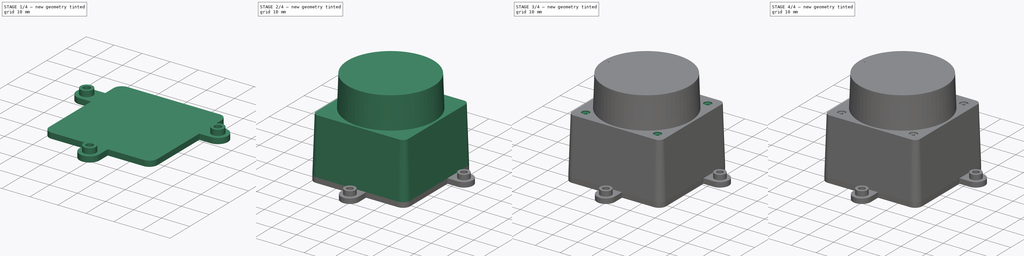
[diagram: build sequence overview — one tinted view per stage of 4, left to right]
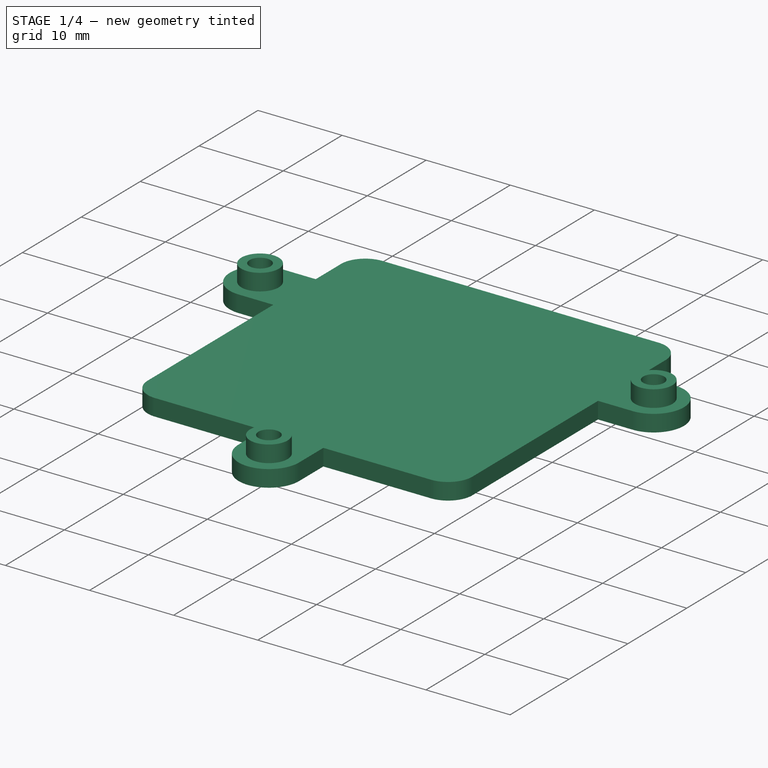
[diagram: stage 1 of 4 — iso view after this stage's code; geometry added in this stage tinted green]
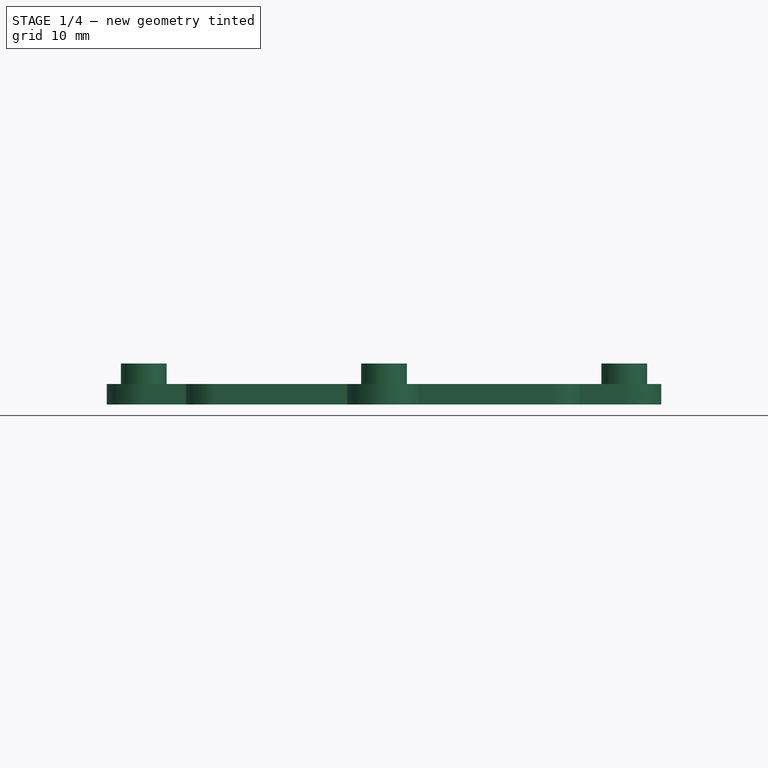
[diagram: stage 1 of 4 — front view after this stage's code; geometry added in this stage tinted green]
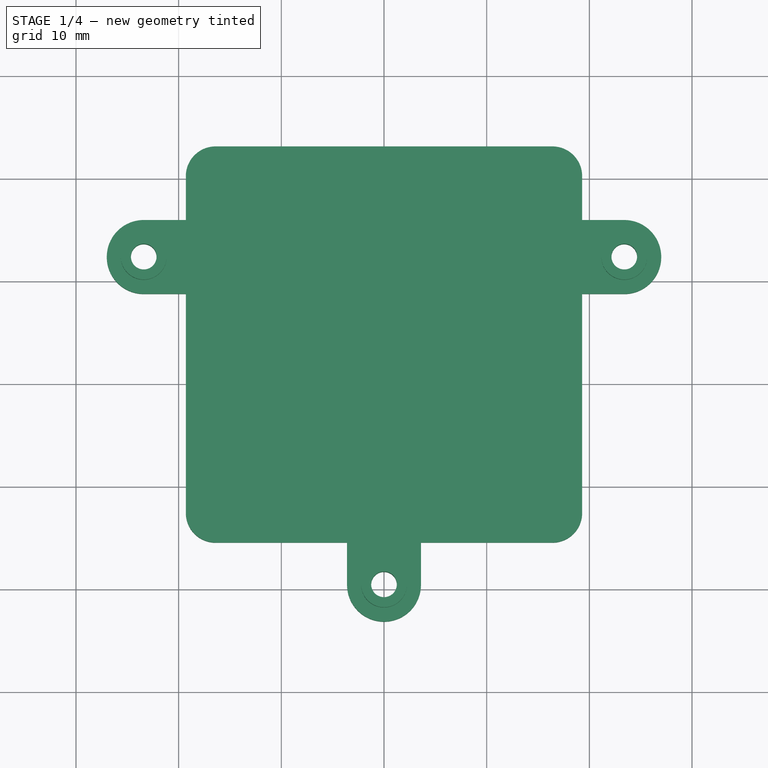
[diagram: stage 1 of 4 — top view after this stage's code; geometry added in this stage tinted green]
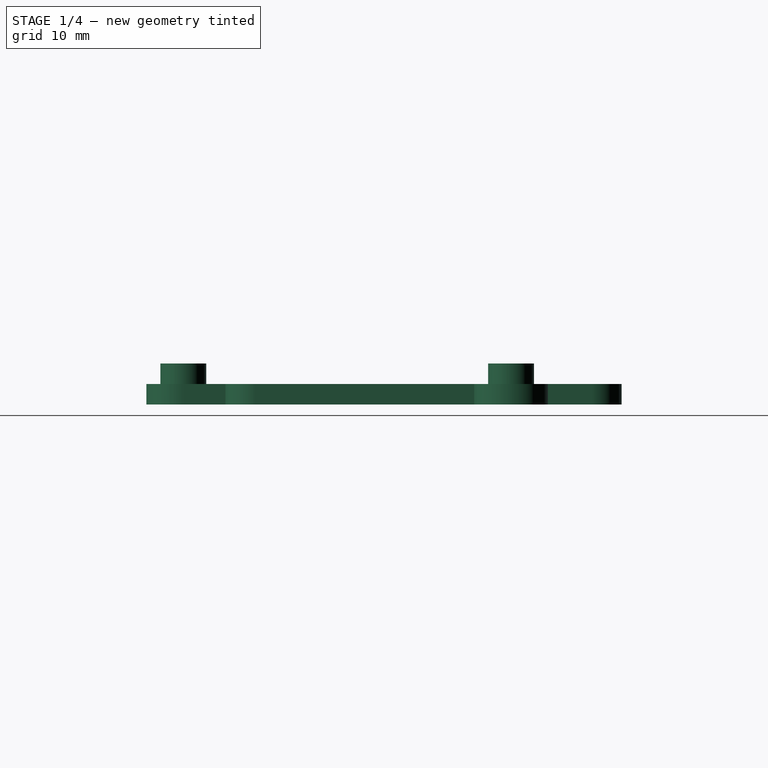
[diagram: stage 1 of 4 — right view after this stage's code; geometry added in this stage tinted green]
FCSTD DOCUMENT  (FreeCAD 1.0R39109 (Git))
Label: ld19_lidar
License: All rights reserved
LicenseURL: http://en.wikipedia.org/wiki/All_rights_reserved
objects: Sketcher::SketchObject×11, PartDesign::Pad×5, PartDesign::Pocket×4, PartDesign::Line×1, PartDesign::PolarPattern×1, PartDesign::Body×1
note: 53 computed .brp shape members not serialized (recipe doc carries the construction recipe); baked Part::Feature solids carry a one-line shape summary decoded from their .brp

FEATURE [Sketcher::SketchObject] Sketch
  ArcFitTolerance = 1e-06
  AttachmentSupport = -> [XY_Plane]
  FullyConstrained = true
  MakeInternals = false
  MapMode = 5
  sketch-geometry (28):
    g0: LineSegment [constr] StartX=-27 StartY=23.145 StartZ=0 EndX=-27 EndY=-23.145 EndZ=0
    g1: LineSegment [constr] StartX=-27 StartY=-23.145 StartZ=0 EndX=27 EndY=-23.145 EndZ=0
    g2: LineSegment [constr] StartX=27 StartY=-23.145 StartZ=0 EndX=27 EndY=23.145 EndZ=0
    g3: LineSegment [constr] StartX=27 StartY=23.145 StartZ=0 EndX=-27 EndY=23.145 EndZ=0
    g4: GeomPoint [constr] X=0 Y=0 Z=0
    g5: LineSegment StartX=-16.4 StartY=23.145 StartZ=0 EndX=16.4 EndY=23.145 EndZ=0
    g6: ArcOfCircle CenterX=16.4 CenterY=20.245 CenterZ=0 NormalX=0 NormalY=0 NormalZ=1 AngleXU=0 Radius=2.9 StartAngle=-1.2692e-12 EndAngle=1.5708
    g7: LineSegment StartX=19.3 StartY=20.245 StartZ=0 EndX=19.3 EndY=15.975 EndZ=0
    g8: LineSegment StartX=19.3 StartY=15.975 StartZ=0 EndX=23.4 EndY=15.975 EndZ=0
    g9: ArcOfCircle CenterX=23.4 CenterY=12.375 CenterZ=0 NormalX=0 NormalY=0 NormalZ=1 AngleXU=0 Radius=3.6 StartAngle=4.71239 EndAngle=7.85398
    g10: LineSegment StartX=23.4 StartY=8.775 StartZ=0 EndX=19.3 EndY=8.775 EndZ=0
    g11: LineSegment StartX=19.3 StartY=8.775 StartZ=0 EndX=19.3 EndY=-12.545 EndZ=0
    g12: ArcOfCircle CenterX=16.4 CenterY=-12.545 CenterZ=0 NormalX=0 NormalY=0 NormalZ=1 AngleXU=0 Radius=2.9 StartAngle=4.71239 EndAngle=6.28319
    g13: LineSegment StartX=16.4 StartY=-15.445 StartZ=0 EndX=3.6 EndY=-15.445 EndZ=0
    g14: LineSegment StartX=3.6 StartY=-15.445 StartZ=0 EndX=3.6 EndY=-19.545 EndZ=0
    g15: ArcOfCircle CenterX=0 CenterY=-19.545 CenterZ=0 NormalX=0 NormalY=0 NormalZ=1 AngleXU=0 Radius=3.6 StartAngle=3.14159 EndAngle=6.28319
    g16: LineSegment StartX=-3.6 StartY=-19.545 StartZ=0 EndX=-3.6 EndY=-15.445 EndZ=0
    g17: LineSegment StartX=-3.6 StartY=-15.445 StartZ=0 EndX=-16.4 EndY=-15.445 EndZ=0
    g18: ArcOfCircle CenterX=-16.4 CenterY=-12.545 CenterZ=0 NormalX=0 NormalY=0 NormalZ=1 AngleXU=0 Radius=2.9 StartAngle=3.14159 EndAngle=4.71239
    g19: LineSegment StartX=-19.3 StartY=-12.545 StartZ=0 EndX=-19.3 EndY=8.775 EndZ=0
    g20: LineSegment StartX=-19.3 StartY=8.775 StartZ=0 EndX=-23.4 EndY=8.775 EndZ=0
    g21: ArcOfCircle CenterX=-23.4 CenterY=12.375 CenterZ=0 NormalX=0 NormalY=0 NormalZ=1 AngleXU=0 Radius=3.6 StartAngle=1.5708 EndAngle=4.71239
    g22: LineSegment StartX=-23.4 StartY=15.975 StartZ=0 EndX=-19.3 EndY=15.975 EndZ=0
    g23: LineSegment StartX=-19.3 StartY=15.975 StartZ=0 EndX=-19.3 EndY=20.245 EndZ=0
    g24: ArcOfCircle CenterX=-16.4 CenterY=20.245 CenterZ=0 NormalX=0 NormalY=0 NormalZ=1 AngleXU=0 Radius=2.9 StartAngle=1.5708 EndAngle=3.14159
    g25: Circle CenterX=-23.4 CenterY=12.375 CenterZ=0 NormalX=0 NormalY=0 NormalZ=1 AngleXU=0 Radius=1.25
    g26: Circle CenterX=23.4 CenterY=12.375 CenterZ=0 NormalX=0 NormalY=0 NormalZ=1 AngleXU=0 Radius=1.25
    g27: Circle CenterX=0 CenterY=-19.545 CenterZ=0 NormalX=0 NormalY=0 NormalZ=1 AngleXU=0 Radius=1.25
  constraints (73):
    c: Coincident(g0,g1)
    c: Coincident(g1,g2)
    c: Coincident(g2,g3)
    c: Coincident(g3,g0)
    c: Vertical(g0)
    c: Vertical(g2)
    c: Horizontal(g1)
    c: Horizontal(g3)
    c: Symmetric(g2,g0,g4)
    c: Coincident(g4,g-1)
    c: DistanceX(g3,g3) = 54
    c: DistanceY(g2,g2) = 46.29
    c: PointOnObject(g5,g3)
    c: Tangent(g5,g6) = 1.5708
    c: Tangent(g6,g7) = 1.5708
    c: Coincident(g7,g8)
    c: Tangent(g8,g9) = 1.5708
    c: Coincident(g9,g10)
    c: Coincident(g10,g11)
    c: Vertical(g11)
    c: Tangent(g11,g12) = 1.5708
    c: Horizontal(g13)
    c: Coincident(g13,g14)
    c: Tangent(g14,g15) = 1.5708
    c: Coincident(g15,g16)
    c: Coincident(g16,g17)
    c: Horizontal(g17)
    c: Tangent(g17,g18) = 1.5708
    c: Vertical(g19)
    c: Coincident(g19,g20)
    c: Horizontal(g20)
    c: Tangent(g20,g21) = 1.5708
    c: Coincident(g21,g22)
    c: Coincident(g22,g23)
    c: Vertical(g23)
    c: Horizontal(g22,g7)
    c: Perpendicular(g22,g23)
    c: Perpendicular(g7,g8)
    c: Vertical(g7)
    c: Horizontal(g10)
    c: Vertical(g19,g22)
    c: Vertical(g21,g21)
    c: Tangent(g0,g21)
    c: Tangent(g9,g2)
    c: Vertical(g9,g9)
    c: Symmetric(g5,g5,g-2)
    c: Horizontal(g6,g23)
    c: Coincident(g24,g23)
    c: Tangent(g24,g5) = 1.5708
    c: Equal(g24,g6)
    c: Horizontal(g10,g19)
    c: Equal(g10,g20)
    c: Vertical(g16)
    c: Vertical(g14)
    c: Tangent(g12,g13) = 1.5708
    c: Tangent(g18,g19) = 1.5708
    c: Tangent(g15,g1)
    c: Horizontal(g14,g15)
    c: Equal(g15,g9)
    c: Symmetric(g13,g16,g-2)
    c: DistanceY(g15,g21) = 31.92
    c: DistanceX(g21,g9) = 46.8
    c: Equal(g18,g12)
    c: Equal(g12,g24)
    c: Radius(g12) = 2.9
    c: Equal(g16,g20)
    c: DistanceY(g12,g5) = 38.59
    c: Coincident(g25,g21)
    c: Coincident(g26,g9)
    c: Coincident(g27,g15)
    c: Equal(g27,g26)
    c: Equal(g26,g25)
    c: Radius(g25) = 1.25
FEATURE [PartDesign::Pad] Pad  label="PlatformPad"
  Direction = (0,0,1)
  Length = 2
  Length2 = 10
  Profile = -> Sketch
  ReferenceAxis = -> Sketch [N_Axis]
  Refine = true
  Suppressed = false
  Type = 0
FEATURE [Sketcher::SketchObject] Sketch001
  ArcFitTolerance = 1e-06
  AttachmentSupport = -> [Pad]
  ExternalGeometry = -> [Pad]
  FullyConstrained = true
  MakeInternals = false
  MapMode = 5
  Placement = pos=(0,0,2) rot=(0,0,1;0rad)
  sketch-geometry (6):
    g0: Circle CenterX=-23.4 CenterY=12.375 CenterZ=0 NormalX=0 NormalY=0 NormalZ=1 AngleXU=0 Radius=2.23
    g1: Circle CenterX=-23.4 CenterY=12.375 CenterZ=0 NormalX=0 NormalY=0 NormalZ=1 AngleXU=0 Radius=1.25
    g2: Circle CenterX=23.4 CenterY=12.375 CenterZ=0 NormalX=0 NormalY=0 NormalZ=1 AngleXU=0 Radius=2.23
    g3: Circle CenterX=23.4 CenterY=12.375 CenterZ=0 NormalX=0 NormalY=0 NormalZ=1 AngleXU=0 Radius=1.25
    g4: Circle CenterX=0 CenterY=-19.545 CenterZ=0 NormalX=0 NormalY=0 NormalZ=1 AngleXU=0 Radius=2.23
    g5: Circle CenterX=0 CenterY=-19.545 CenterZ=0 NormalX=0 NormalY=0 NormalZ=1 AngleXU=0 Radius=1.25
  constraints (12):
    c: Coincident(g0,g-3)
    c: Coincident(g1,g0)
    c: Coincident(g2,g-5)
    c: Coincident(g3,g2)
    c: Coincident(g4,g-4)
    c: Coincident(g5,g4)
    c: Equal(g5,g-4)
    c: Equal(g4,g2)
    c: Equal(g2,g0)
    c: Equal(g1,g-3)
    c: Equal(g3,g-5)
    c: Radius(g2) = 2.23
FEATURE [PartDesign::Pad] Pad001  label="ScrewExtPad"
  BaseFeature = -> Pad
  Direction = (0,0,1)
  Length = 2
  Length2 = 10
  Profile = -> Sketch001
  ReferenceAxis = -> Sketch001 [N_Axis]
  Refine = true
  Suppressed = false
  Type = 0
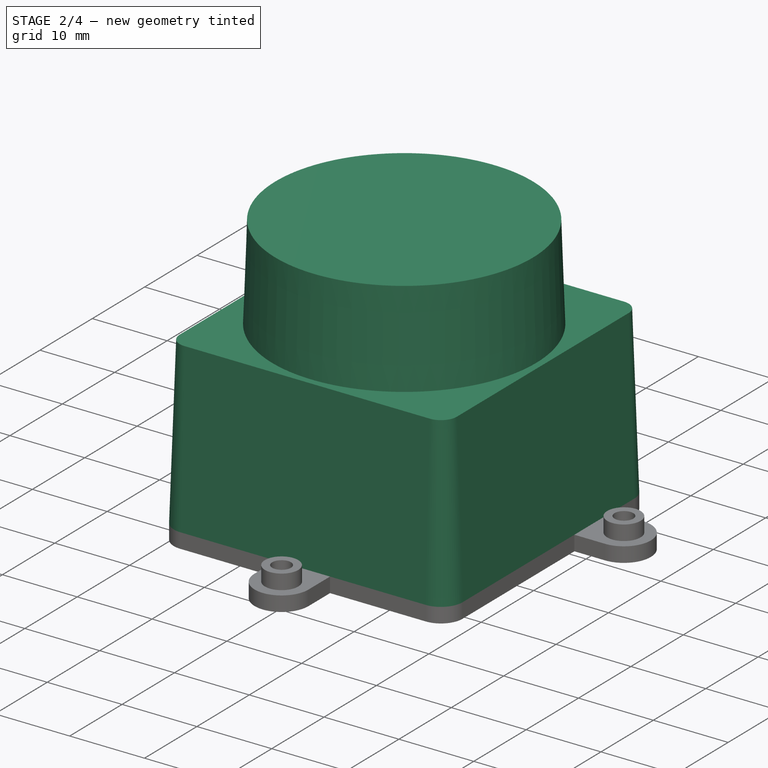
[diagram: stage 2 of 4 — iso view after this stage's code; geometry added in this stage tinted green]
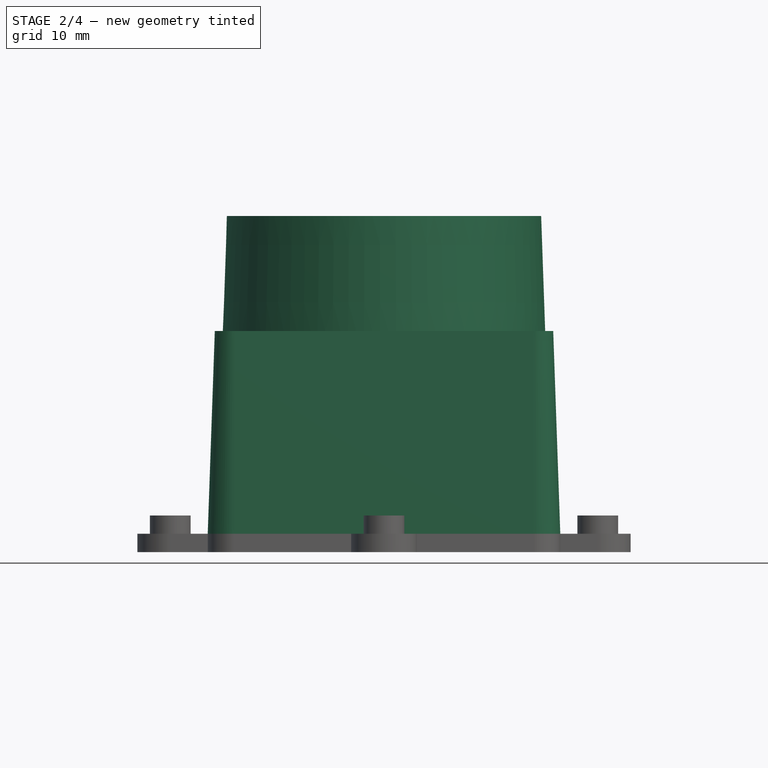
[diagram: stage 2 of 4 — front view after this stage's code; geometry added in this stage tinted green]
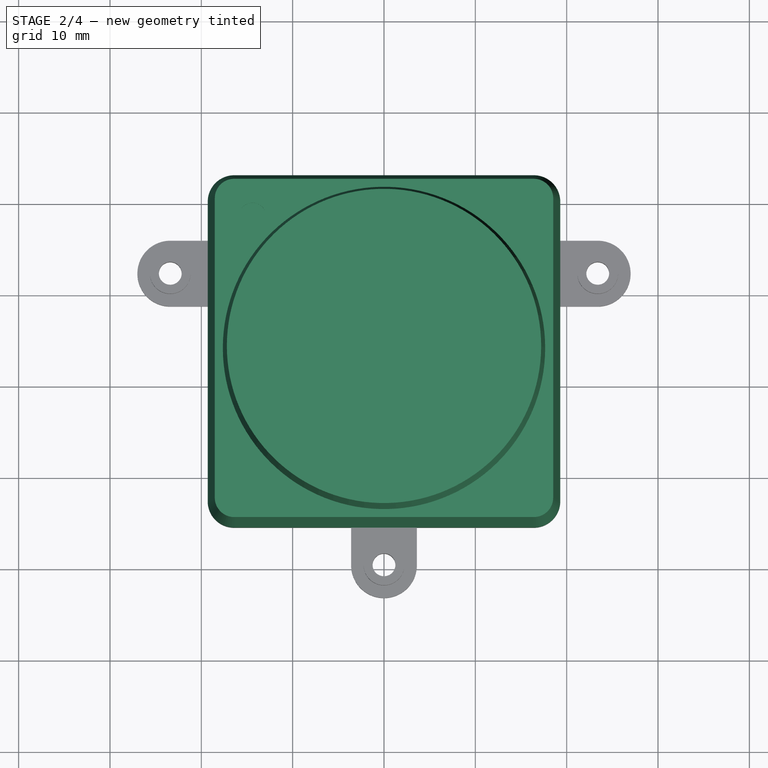
[diagram: stage 2 of 4 — top view after this stage's code; geometry added in this stage tinted green]
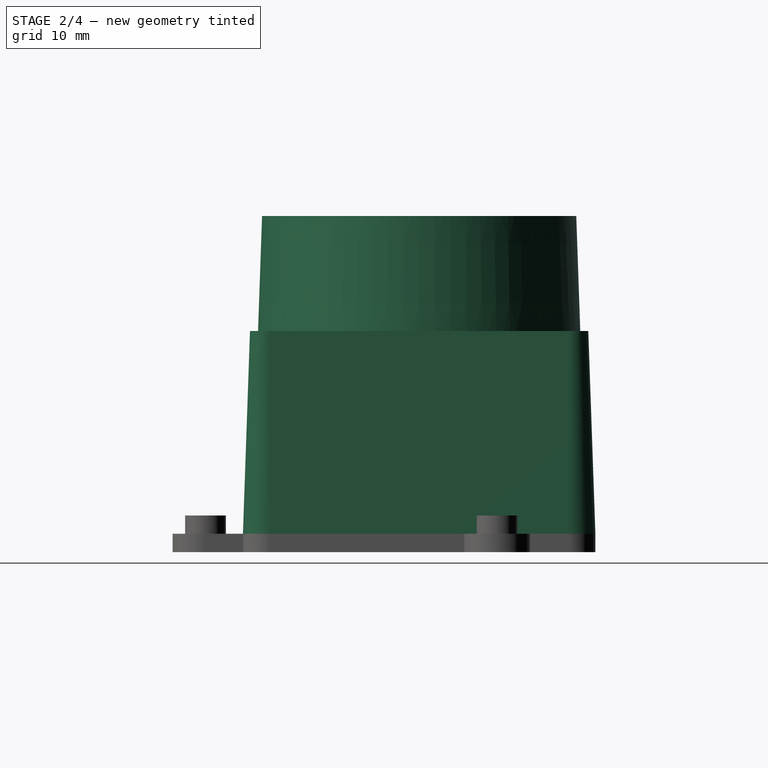
[diagram: stage 2 of 4 — right view after this stage's code; geometry added in this stage tinted green]
FEATURE [Sketcher::SketchObject] Sketch002
  ArcFitTolerance = 1e-06
  AttachmentSupport = -> [Pad001]
  ExternalGeometry = -> [Pad001]
  FullyConstrained = true
  MakeInternals = false
  MapMode = 5
  Placement = pos=(0,0,2) rot=(0,0,1;0rad)
  sketch-geometry (10):
    g0: LineSegment StartX=-19.3 StartY=20.245 StartZ=0 EndX=-19.3 EndY=-12.545 EndZ=0
    g1: LineSegment StartX=-16.4 StartY=-15.445 StartZ=0 EndX=16.4 EndY=-15.445 EndZ=0
    g2: LineSegment StartX=19.3 StartY=-12.545 StartZ=0 EndX=19.3 EndY=20.245 EndZ=0
    g3: LineSegment StartX=16.4 StartY=23.145 StartZ=0 EndX=-16.4 EndY=23.145 EndZ=0
    g4: ArcOfCircle CenterX=-16.4 CenterY=20.245 CenterZ=0 NormalX=0 NormalY=0 NormalZ=1 AngleXU=0 Radius=2.9 StartAngle=1.5708 EndAngle=3.14159
    g5: ArcOfCircle CenterX=-16.4 CenterY=-12.545 CenterZ=0 NormalX=0 NormalY=0 NormalZ=1 AngleXU=0 Radius=2.9 StartAngle=3.14159 EndAngle=4.71239
    g6: ArcOfCircle CenterX=16.4 CenterY=-12.545 CenterZ=0 NormalX=0 NormalY=0 NormalZ=1 AngleXU=0 Radius=2.9 StartAngle=4.71239 EndAngle=6.28319
    g7: ArcOfCircle CenterX=16.4 CenterY=20.245 CenterZ=0 NormalX=0 NormalY=0 NormalZ=1 AngleXU=0 Radius=2.9 StartAngle=5e-16 EndAngle=1.5708
    g8: GeomPoint [constr] X=-19.3 Y=23.145 Z=0
    g9: GeomPoint [constr] X=19.3 Y=-15.445 Z=0
  constraints (22):
    c: Tangent(g0,g4) = -1.5708
    c: Tangent(g0,g5) = -1.5708
    c: Tangent(g1,g5) = -1.5708
    c: Tangent(g1,g6) = -1.5708
    c: Tangent(g2,g6) = -1.5708
    c: Tangent(g2,g7) = -1.5708
    c: Tangent(g3,g7) = -1.5708
    c: Tangent(g3,g4) = -1.5708
    c: Vertical(g0)
    c: Vertical(g2)
    c: Horizontal(g1)
    c: Horizontal(g3)
    c: Equal(g4,g5)
    c: Equal(g5,g6)
    c: Equal(g6,g7)
    c: PointOnObject(g8,g0)
    c: PointOnObject(g8,g3)
    c: PointOnObject(g9,g1)
    c: PointOnObject(g9,g2)
    c: Equal(g6,g-7)
    c: Coincident(g6,g-7)
    c: Coincident(g4,g-8)
FEATURE [PartDesign::Pad] Pad002  label="BoxPad"
  BaseFeature = -> Pad001
  Direction = (0,0,1)
  Length = 22.2
  Length2 = 10
  Profile = -> Sketch002
  ReferenceAxis = -> Sketch002 [N_Axis]
  Refine = true
  Suppressed = false
  TaperAngle = -2
  Type = 0
FEATURE [Sketcher::SketchObject] Sketch003
  ArcFitTolerance = 1e-06
  AttachmentSupport = -> [Pad002]
  ExternalGeometry = -> [Pad002]
  FullyConstrained = true
  MakeInternals = false
  MapMode = 5
  Placement = pos=(0,0,24.2) rot=(0,0,1;0rad)
  sketch-geometry (3):
    g0: Circle CenterX=0 CenterY=3.85 CenterZ=0 NormalX=0 NormalY=0 NormalZ=1 AngleXU=0 Radius=17.645
    g1: GeomPoint X=18.5248 Y=3.85 Z=0
    g2: GeomPoint X=-2.593e-13 Y=22.3698 Z=0
  constraints (5):
    c: PointOnObject(g0,g-2)
    c: Symmetric(g-3,g-3,g1)
    c: Symmetric(g-4,g-4,g2)
    c: Horizontal(g1,g0)
    c: Radius(g0) = 17.645
FEATURE [PartDesign::Pad] Pad003  label="CylinderPad"
  BaseFeature = -> Pad002
  Direction = (0,0,1)
  Length = 12.6
  Length2 = 10
  Profile = -> Sketch003
  ReferenceAxis = -> Sketch003 [N_Axis]
  Refine = true
  Suppressed = false
  TaperAngle = -2
  Type = 0
FEATURE [Sketcher::SketchObject] Sketch004
  ArcFitTolerance = 1e-06
  AttachmentSupport = -> [Pad003]
  ExternalGeometry = -> [Pad003]
  FullyConstrained = true
  MakeInternals = false
  MapMode = 5
  Placement = pos=(0,0,24.2) rot=(0,0,1;0rad)
  sketch-geometry (3):
    g0: Circle CenterX=-14.3949 CenterY=18.2449 CenterZ=0 NormalX=0 NormalY=0 NormalZ=1 AngleXU=0 Radius=1.5
    g1: LineSegment [constr] StartX=-14.3949 StartY=18.2449 StartZ=0 EndX=0 EndY=3.85 EndZ=0
    g2: LineSegment [constr] StartX=0 StartY=3.85 StartZ=0 EndX=-17.205 EndY=3.85 EndZ=0
  constraints (8):
    c: Radius(g0) = 1.5
    c: Coincident(g1,g0)
    c: Coincident(g1,g-3)
    c: Coincident(g2,g1)
    c: PointOnObject(g2,g-3)
    c: Horizontal(g2)
    c: Angle(g1,g2) = 0.785398
    c: Distance(g1) = 20.3575
FEATURE [PartDesign::Pocket] Pocket  label="ScrewPocket"
  BaseFeature = -> Pad003
  Direction = (0,0,-1)
  Length = 0.5
  Length2 = 5
  Profile = -> Sketch004
  ReferenceAxis = -> Sketch004 [N_Axis]
  Refine = true
  Suppressed = false
  Type = 0
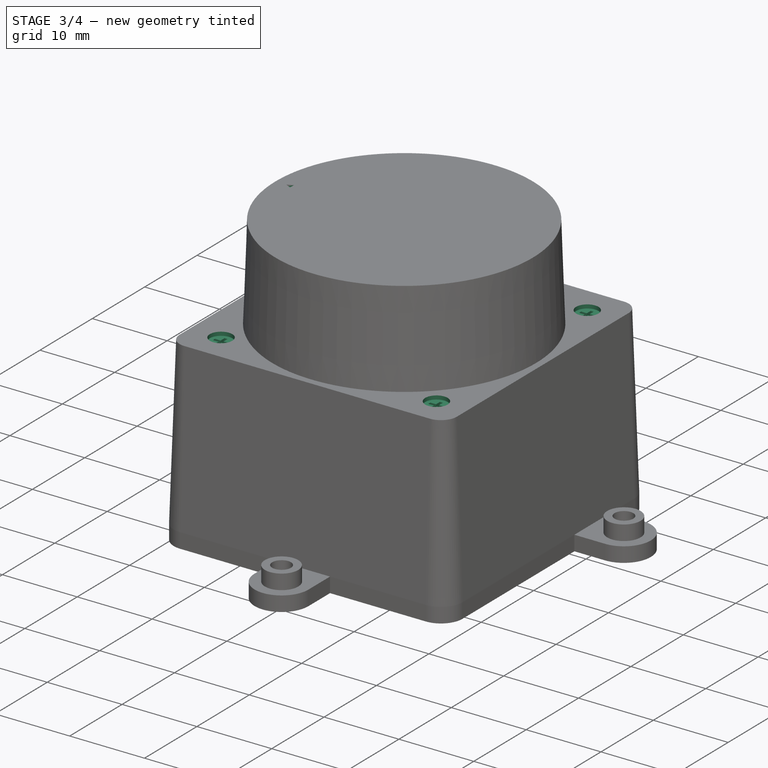
[diagram: stage 3 of 4 — iso view after this stage's code; geometry added in this stage tinted green]
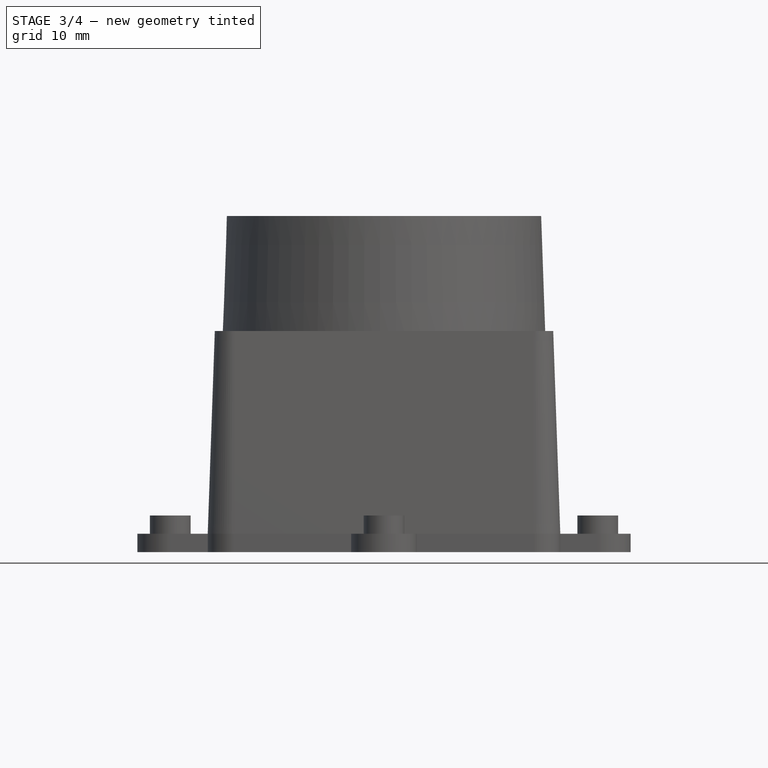
[diagram: stage 3 of 4 — front view after this stage's code; geometry added in this stage tinted green]
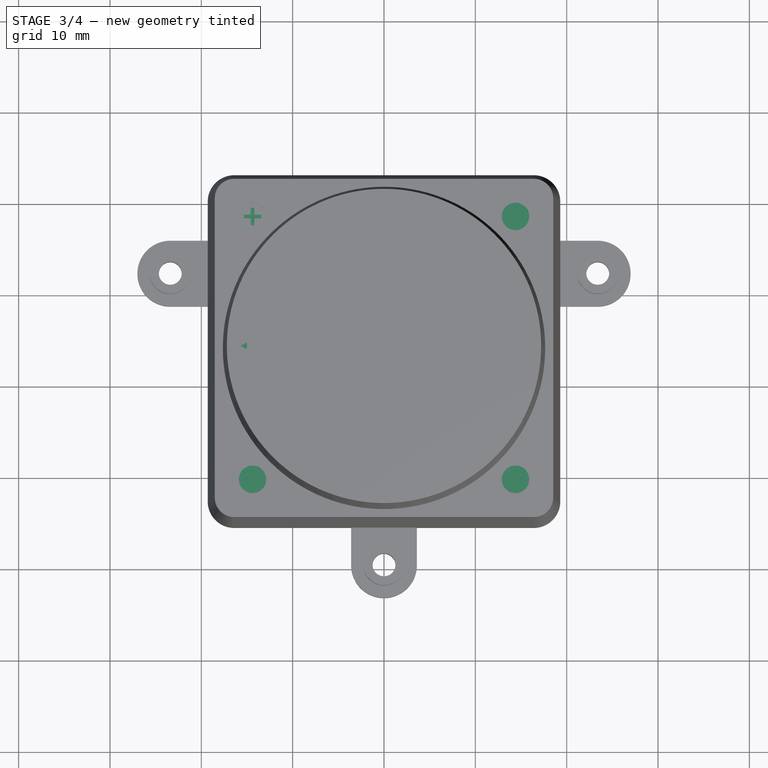
[diagram: stage 3 of 4 — top view after this stage's code; geometry added in this stage tinted green]
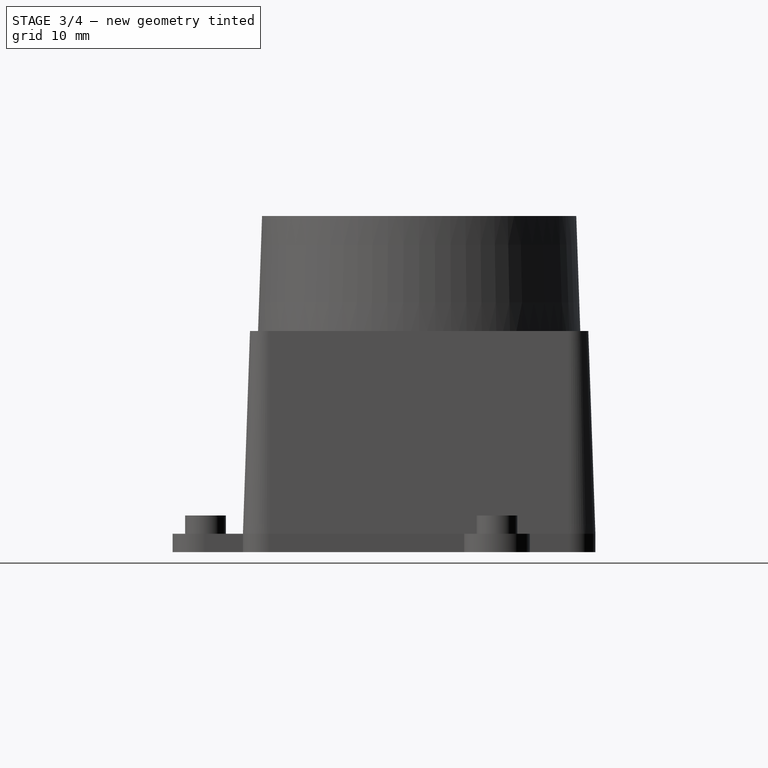
[diagram: stage 3 of 4 — right view after this stage's code; geometry added in this stage tinted green]
FEATURE [Sketcher::SketchObject] Sketch005
  ArcFitTolerance = 1e-06
  AttachmentSupport = -> [Pocket]
  ExternalGeometry = -> [Pocket]
  FullyConstrained = true
  MakeInternals = false
  MapMode = 5
  Placement = pos=(0,0,23.7) rot=(0,0,1;0rad)
  sketch-geometry (12):
    g0: LineSegment StartX=-14.5949 StartY=19.1949 StartZ=0 EndX=-14.1949 EndY=19.1949 EndZ=0
    g1: LineSegment StartX=-14.1949 StartY=19.1949 StartZ=0 EndX=-14.1949 EndY=18.4449 EndZ=0
    g2: LineSegment StartX=-14.1949 StartY=18.4449 StartZ=0 EndX=-13.4449 EndY=18.4449 EndZ=0
    g3: LineSegment StartX=-13.4449 StartY=18.4449 StartZ=0 EndX=-13.4449 EndY=18.0449 EndZ=0
    g4: LineSegment StartX=-13.4449 StartY=18.0449 StartZ=0 EndX=-14.1949 EndY=18.0449 EndZ=0
    g5: LineSegment StartX=-14.1949 StartY=18.0449 StartZ=0 EndX=-14.1949 EndY=17.2949 EndZ=0
    g6: LineSegment StartX=-14.1949 StartY=17.2949 StartZ=0 EndX=-14.5949 EndY=17.2949 EndZ=0
    g7: LineSegment StartX=-14.5949 StartY=17.2949 StartZ=0 EndX=-14.5949 EndY=18.0449 EndZ=0
    g8: LineSegment StartX=-14.5949 StartY=18.0449 StartZ=0 EndX=-15.3449 EndY=18.0449 EndZ=0
    g9: LineSegment StartX=-15.3449 StartY=18.0449 StartZ=0 EndX=-15.3449 EndY=18.4449 EndZ=0
    g10: LineSegment StartX=-15.3449 StartY=18.4449 StartZ=0 EndX=-14.5949 EndY=18.4449 EndZ=0
    g11: LineSegment StartX=-14.5949 StartY=18.4449 StartZ=0 EndX=-14.5949 EndY=19.1949 EndZ=0
  constraints (35):
    c: Coincident(g0,g1)
    c: Coincident(g1,g2)
    c: Coincident(g2,g3)
    c: Coincident(g3,g4)
    c: Horizontal(g4)
    c: Coincident(g4,g5)
    c: Coincident(g5,g6)
    c: Horizontal(g6)
    c: Coincident(g6,g7)
    c: Vertical(g7)
    c: Coincident(g7,g8)
    c: Horizontal(g8)
    c: Coincident(g8,g9)
    c: Coincident(g9,g10)
    c: Coincident(g10,g11)
    c: Coincident(g11,g0)
    c: Vertical(g11)
    c: Vertical(g1)
    c: Vertical(g5)
    c: Vertical(g10,g7)
    c: Vertical(g9)
    c: Vertical(g3)
    c: Vertical(g1,g4)
    c: Horizontal(g10)
    c: Horizontal(g10,g1)
    c: Horizontal(g2)
    c: Horizontal(g0)
    c: Horizontal(g7,g4)
    c: Equal(g6,g3)
    c: Symmetric(g4,g10,g-3)
    c: Equal(g4,g5)
    c: Equal(g8,g7)
    c: DistanceY(g3,g3) = 0.4
    c: DistanceY(g1,g1) = 0.75
    c: Equal(g1,g5)
FEATURE [PartDesign::Pocket] Pocket001  label="ScrewPatternPocket"
  BaseFeature = -> Pocket
  Direction = (0,0,-1)
  Length = 0.5
  Length2 = 5
  Profile = -> Sketch005
  ReferenceAxis = -> Sketch005 [N_Axis]
  Refine = true
  Suppressed = false
  Type = 0
FEATURE [Sketcher::SketchObject] Sketch006
  ArcFitTolerance = 1e-06
  AttachmentSupport = -> [Pocket001]
  ExternalGeometry = -> [Pocket001]
  FullyConstrained = true
  MakeInternals = false
  MapMode = 5
  Placement = pos=(0,0,36.8) rot=(0,0,1;0rad)
  sketch-geometry (1):
    g0: GeomPoint X=0 Y=3.85 Z=0
  constraints (1):
    c: Coincident(g0,g-3)
FEATURE [Sketcher::SketchObject] Sketch007
  ArcFitTolerance = 1e-06
  AttachmentSupport = -> [YZ_Plane]
  ExternalGeometry = -> [Sketch006,Pocket001]
  FullyConstrained = true
  MakeInternals = false
  MapMode = 5
  Placement = pos=(0,0,0) rot=(0.57735,0.57735,0.57735;2.0944rad)
  sketch-geometry (1):
    g0: LineSegment StartX=3.85 StartY=36.8 StartZ=0 EndX=3.85 EndY=24.2 EndZ=0
  constraints (3):
    c: Coincident(g0,g-3)
    c: Vertical(g0)
    c: PointOnObject(g0,g-5)
FEATURE [PartDesign::Line] DatumLine  label="RevolutionAxis"
  AttacherType = Attacher::AttachEngineLine
  AttachmentSupport = -> [Sketch007]
  Length = 20
  MapMode = 29
  Placement = pos=(0,3.85,0) rot=(0,1,0;3.14159rad)
  ResizeMode = 0
FEATURE [PartDesign::PolarPattern] PolarPattern  label="ScrewPattern"
  Angle = 360
  Axis = -> DatumLine
  BaseFeature = -> Pocket001
  Mode = 0
  Occurrences = 4
  Offset = 120
  Originals = -> [Pocket,Pocket001]
  Refine = true
  Suppressed = false
  TransformMode = 0
FEATURE [Sketcher::SketchObject] Sketch008
  ArcFitTolerance = 1e-06
  AttachmentSupport = -> [PolarPattern]
  ExternalGeometry = -> [PolarPattern]
  FullyConstrained = true
  MakeInternals = false
  MapMode = 5
  Placement = pos=(0,0,36.8) rot=(0,0,1;0rad)
  sketch-geometry (4):
    g0: LineSegment StartX=-15 StartY=4.225 StartZ=0 EndX=-15 EndY=3.475 EndZ=0
    g1: LineSegment StartX=-15 StartY=3.475 StartZ=0 EndX=-15.75 EndY=3.85 EndZ=0
    g2: LineSegment StartX=-15.75 StartY=3.85 StartZ=0 EndX=-15 EndY=4.225 EndZ=0
    g3: GeomPoint X=-15 Y=3.85 Z=0
  constraints (10):
    c: Vertical(g0)
    c: Coincident(g0,g1)
    c: Coincident(g1,g2)
    c: Coincident(g2,g0)
    c: Symmetric(g0,g0,g3)
    c: Horizontal(g1,g3)
    c: Horizontal(g3,g-3)
    c: DistanceY(g0,g0) = 0.75
    c: DistanceX(g1,g3) = 0.75
    c: DistanceX(g3,g-3) = 15
FEATURE [PartDesign::Pocket] Pocket002  label="ArrowPocket"
  BaseFeature = -> PolarPattern
  Direction = (0,0,-1)
  Length = 0.25
  Length2 = 5
  Profile = -> Sketch008
  ReferenceAxis = -> Sketch008 [N_Axis]
  Refine = true
  Suppressed = false
  Type = 0
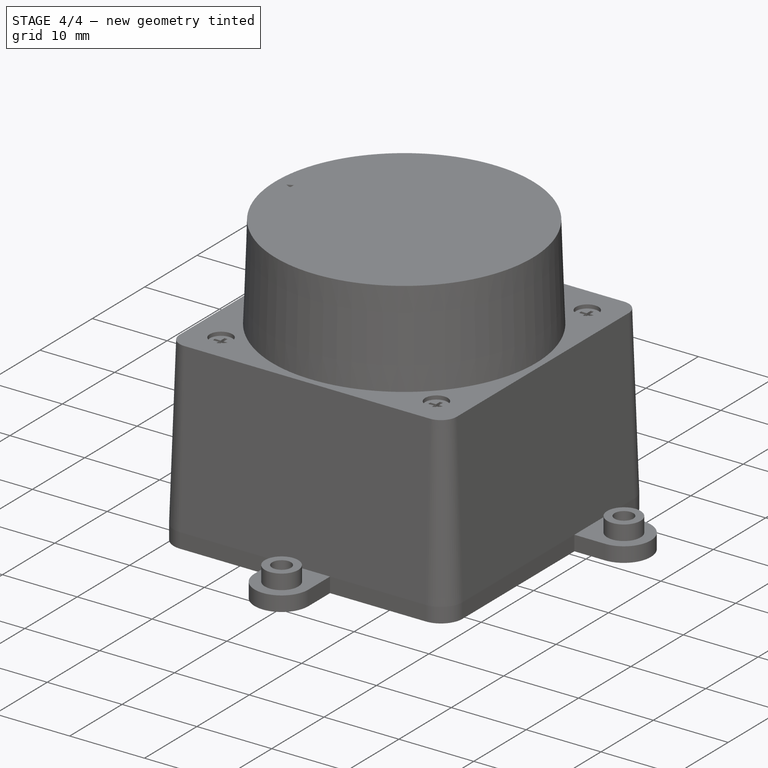
[diagram: stage 4 of 4 — iso view after this stage's code; geometry added in this stage tinted green]
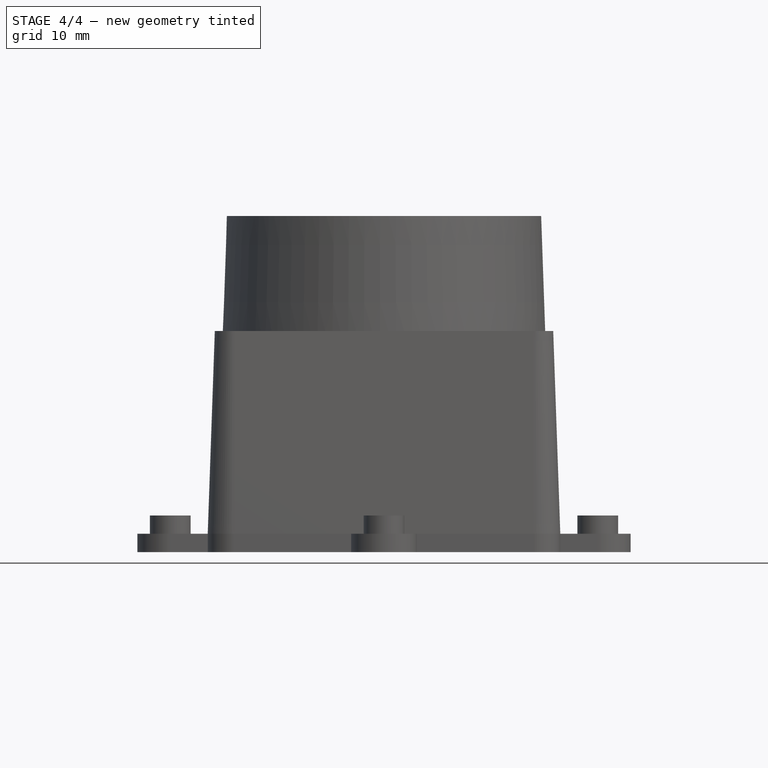
[diagram: stage 4 of 4 — front view after this stage's code; geometry added in this stage tinted green]
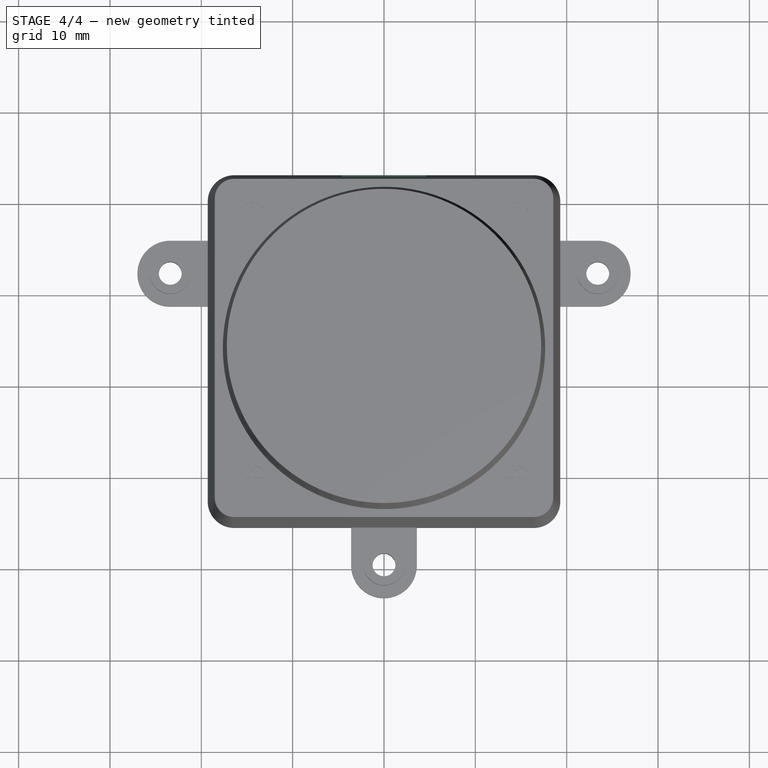
[diagram: stage 4 of 4 — top view after this stage's code; geometry added in this stage tinted green]
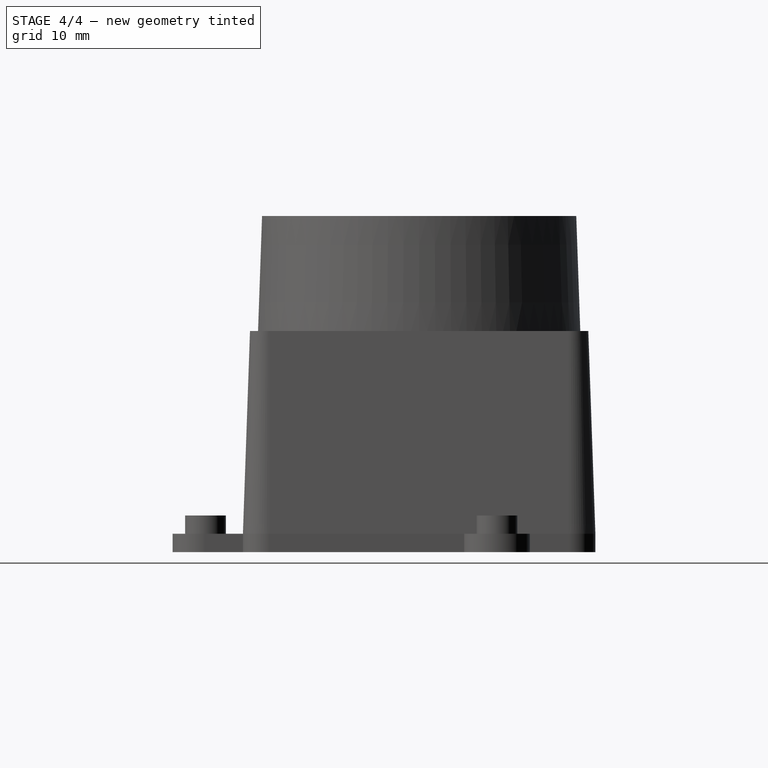
[diagram: stage 4 of 4 — right view after this stage's code; geometry added in this stage tinted green]
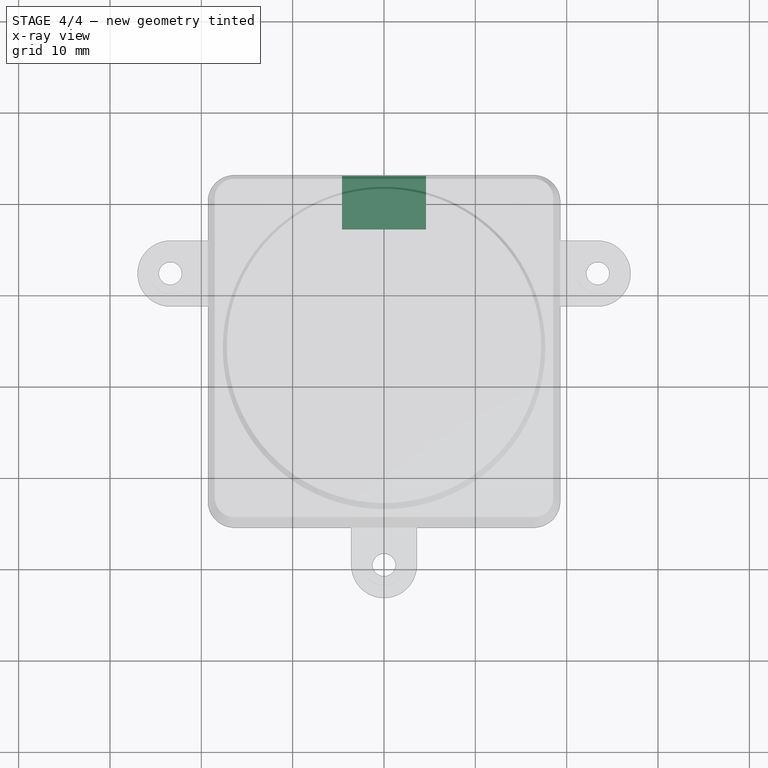
[diagram: stage 4 of 4 — x-ray composite at the top view; earlier geometry ghosted, this stage's added geometry solid]
FEATURE [Sketcher::SketchObject] Sketch009
  ArcFitTolerance = 1e-06
  AttachmentSupport = -> [Pocket002]
  ExternalGeometry = -> [Pocket002]
  FullyConstrained = true
  MakeInternals = false
  MapMode = 5
  Placement = pos=(-1.61147e-11,23.145,0) rot=(0,0.707107,0.707107;3.14159rad)
  sketch-geometry (6):
    g0: LineSegment StartX=-4.6 StartY=8.804 StartZ=0 EndX=-4.6 EndY=5.302 EndZ=0
    g1: LineSegment StartX=-4.6 StartY=5.302 StartZ=0 EndX=4.6 EndY=5.302 EndZ=0
    g2: LineSegment StartX=4.6 StartY=5.302 StartZ=0 EndX=4.6 EndY=8.804 EndZ=0
    g3: LineSegment StartX=4.6 StartY=8.804 StartZ=0 EndX=-4.6 EndY=8.804 EndZ=0
    g4: GeomPoint [constr] X=0 Y=7.053 Z=0
    g5: GeomPoint X=4.6 Y=7.053 Z=0
  constraints (14):
    c: Coincident(g0,g1)
    c: Coincident(g1,g2)
    c: Coincident(g2,g3)
    c: Coincident(g3,g0)
    c: Vertical(g0)
    c: Vertical(g2)
    c: Horizontal(g1)
    c: Horizontal(g3)
    c: Symmetric(g2,g0,g4)
    c: PointOnObject(g4,g-2)
    c: DistanceY(g0,g0) = 3.502
    c: DistanceX(g3,g3) = 9.2
    c: Symmetric(g2,g2,g5)
    c: DistanceY(g-3,g1) = 3.302
FEATURE [PartDesign::Pocket] Pocket003
  BaseFeature = -> Pocket002
  Direction = (6.962e-13,-1,2e-16)
  Length = 6
  Length2 = 5
  Profile = -> Sketch009
  ReferenceAxis = -> Sketch009 [N_Axis]
  Refine = true
  Suppressed = false
  Type = 0
FEATURE [Sketcher::SketchObject] Sketch010
  ArcFitTolerance = 1e-06
  AttachmentSupport = -> [Pocket003]
  ExternalGeometry = -> [Pocket003]
  FullyConstrained = true
  MakeInternals = false
  MapMode = 5
  Placement = pos=(-1.19372e-11,17.145,0) rot=(0,0.707107,0.707107;3.14159rad)
  sketch-geometry (25):
    g0: LineSegment StartX=-3.35 StartY=7.904 StartZ=0 EndX=-3.35 EndY=7.304 EndZ=0
    g1: LineSegment StartX=-3.35 StartY=7.304 StartZ=0 EndX=-2.75 EndY=7.304 EndZ=0
    g2: LineSegment StartX=-2.75 StartY=7.304 StartZ=0 EndX=-2.75 EndY=7.904 EndZ=0
    g3: LineSegment StartX=-2.75 StartY=7.904 StartZ=0 EndX=-3.35 EndY=7.904 EndZ=0
    g4: GeomPoint [constr] X=-3.05 Y=7.604 Z=0
    g5: LineSegment StartX=-1.31667 StartY=7.904 StartZ=0 EndX=-1.31667 EndY=7.304 EndZ=0
    g6: LineSegment StartX=-1.31667 StartY=7.304 StartZ=0 EndX=-0.716667 EndY=7.304 EndZ=0
    g7: LineSegment StartX=-0.716667 StartY=7.304 StartZ=0 EndX=-0.716667 EndY=7.904 EndZ=0
    g8: LineSegment StartX=-0.716667 StartY=7.904 StartZ=0 EndX=-1.31667 EndY=7.904 EndZ=0
    g9: GeomPoint [constr] X=-1.01667 Y=7.604 Z=0
    g10: LineSegment StartX=0.716667 StartY=7.904 StartZ=0 EndX=0.716667 EndY=7.304 EndZ=0
    g11: LineSegment StartX=0.716667 StartY=7.304 StartZ=0 EndX=1.31667 EndY=7.304 EndZ=0
    g12: LineSegment StartX=1.31667 StartY=7.304 StartZ=0 EndX=1.31667 EndY=7.904 EndZ=0
    g13: LineSegment StartX=1.31667 StartY=7.904 StartZ=0 EndX=0.716667 EndY=7.904 EndZ=0
    g14: GeomPoint [constr] X=1.01667 Y=7.604 Z=0
    g15: LineSegment StartX=2.75 StartY=7.904 StartZ=0 EndX=2.75 EndY=7.304 EndZ=0
    g16: LineSegment StartX=2.75 StartY=7.304 StartZ=0 EndX=3.35 EndY=7.304 EndZ=0
    g17: LineSegment StartX=3.35 StartY=7.304 StartZ=0 EndX=3.35 EndY=7.904 EndZ=0
    g18: LineSegment StartX=3.35 StartY=7.904 StartZ=0 EndX=2.75 EndY=7.904 EndZ=0
    g19: GeomPoint [constr] X=3.05 Y=7.604 Z=0
    g20: LineSegment [constr] StartX=-2.75 StartY=7.904 StartZ=0 EndX=-1.31667 EndY=7.904 EndZ=0
    g21: LineSegment [constr] StartX=-0.716667 StartY=7.904 StartZ=0 EndX=0.716667 EndY=7.904 EndZ=0
    g22: LineSegment [constr] StartX=1.31667 StartY=7.904 StartZ=0 EndX=2.75 EndY=7.904 EndZ=0
    g23: LineSegment [constr] StartX=-3.35 StartY=7.904 StartZ=0 EndX=-4.6 EndY=7.904 EndZ=0
    g24: LineSegment [constr] StartX=3.35 StartY=7.904 StartZ=0 EndX=4.6 EndY=7.904 EndZ=0
  constraints (64):
    c: Coincident(g0,g1)
    c: Coincident(g1,g2)
    c: Coincident(g2,g3)
    c: Coincident(g3,g0)
    c: Vertical(g0)
    c: Vertical(g2)
    c: Horizontal(g1)
    c: Horizontal(g3)
    c: Symmetric(g2,g0,g4)
    c: Coincident(g5,g6)
    c: Coincident(g6,g7)
    c: Coincident(g7,g8)
    c: Coincident(g8,g5)
    c: Vertical(g5)
    c: Vertical(g7)
    c: Horizontal(g6)
    c: Horizontal(g8)
    c: Symmetric(g7,g5,g9)
    c: Coincident(g10,g11)
    c: Coincident(g11,g12)
    c: Coincident(g12,g13)
    c: Coincident(g13,g10)
    c: Vertical(g10)
    c: Vertical(g12)
    c: Horizontal(g11)
    c: Horizontal(g13)
    c: Symmetric(g12,g10,g14)
    c: Coincident(g15,g16)
    c: Coincident(g16,g17)
    c: Coincident(g17,g18)
    c: Coincident(g18,g15)
    c: Vertical(g15)
    c: Vertical(g17)
    c: Horizontal(g16)
    c: Horizontal(g18)
    c: Symmetric(g17,g15,g19)
    c: Equal(g15,g12)
    c: Equal(g12,g7)
    c: Equal(g7,g2)
    c: Equal(g2,g3)
    c: Equal(g3,g8)
    c: Equal(g8,g13)
    c: Equal(g13,g18)
    c: Coincident(g20,g2)
    c: Coincident(g20,g5)
    c: Coincident(g21,g7)
    c: Coincident(g21,g10)
    c: Coincident(g22,g12)
    c: Coincident(g22,g15)
    c: Horizontal(g22)
    c: Coincident(g23,g0)
    c: PointOnObject(g23,g-4)
    c: Coincident(g24,g17)
    c: PointOnObject(g24,g-3)
    c: Horizontal(g24)
    c: Horizontal(g23)
    c: Equal(g20,g21)
    c: Equal(g21,g22)
    c: Horizontal(g20)
    c: Horizontal(g21)
    c: Equal(g23,g24)
    c: DistanceY(g15,g15) = 0.6
    c: DistanceY(g24,g-3) = 0.9
    c: DistanceX(g24,g24) = 1.25
FEATURE [PartDesign::Pad] Pad004
  BaseFeature = -> Pocket003
  Direction = (-6.963e-13,1,-2e-16)
  Length = 5
  Length2 = 10
  Profile = -> Sketch010
  ReferenceAxis = -> Sketch010 [N_Axis]
  Refine = true
  Suppressed = false
  Type = 0
FEATURE [PartDesign::Body] Body  label="ld19_lidar"
  AllowCompound = false
  Group = -> [Sketch,Pad,Sketch001,Pad001,Sketch002,Pad002,Sketch003,Pad003,Sketch004,Pocket,Sketch005,Pocket001,Sketch006,Sketch007,DatumLine,PolarPattern,Sketch008,Pocket002,Sketch009,Pocket003,Sketch010,Pad004]
  Origin = -> Origin
  Tip = -> Pad004
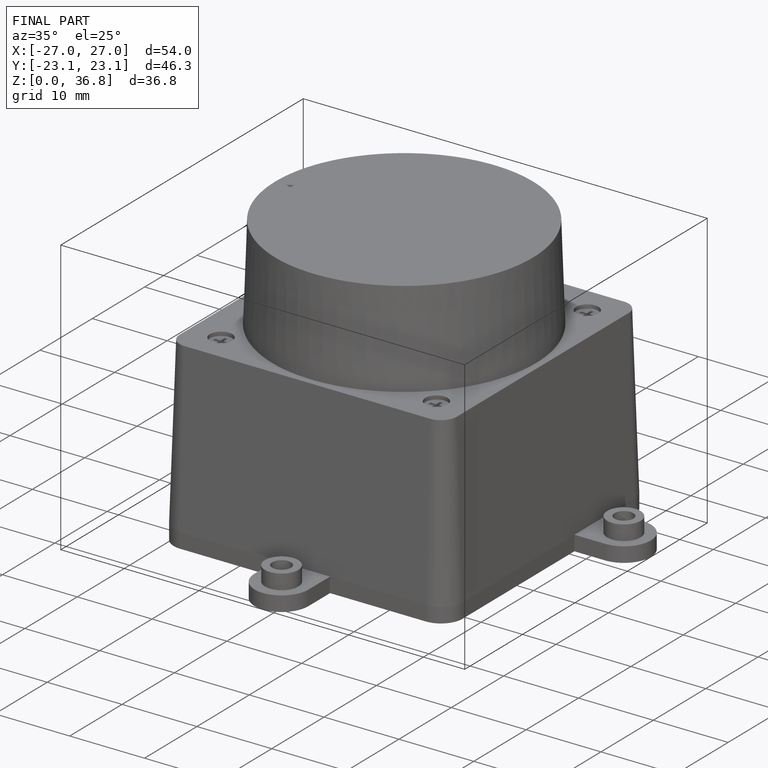
[diagram: finished part — iso view with bounding-box wireframe]
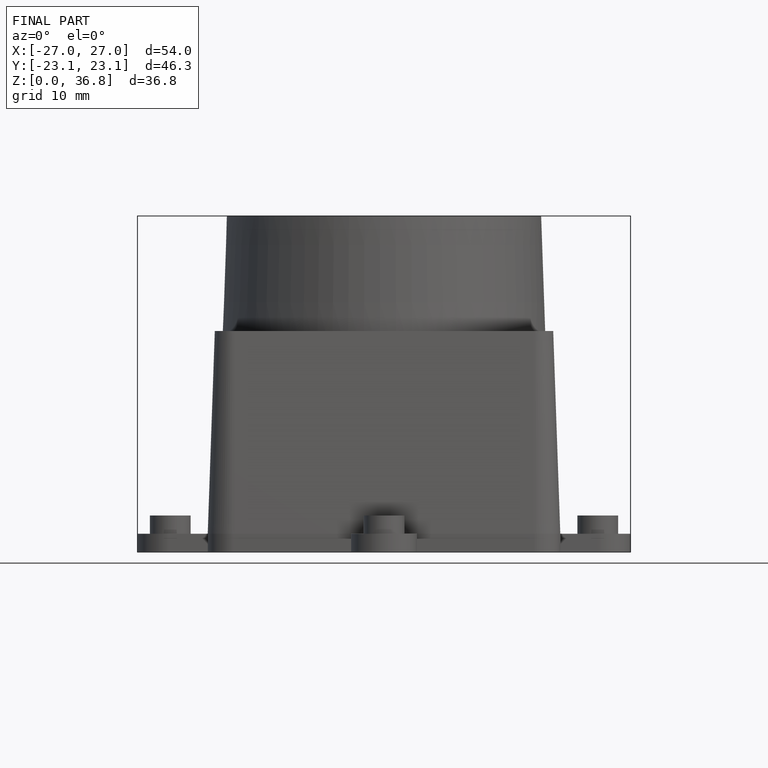
[diagram: finished part — front view with bounding-box wireframe]
